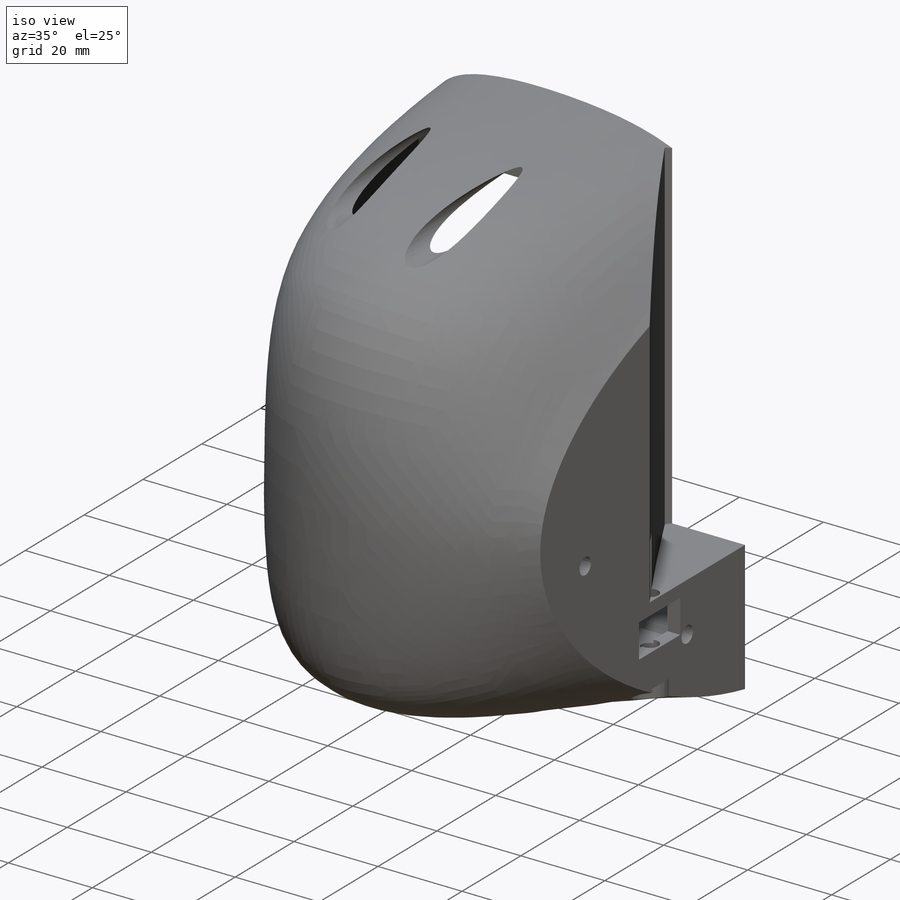
[diagram: iso view]
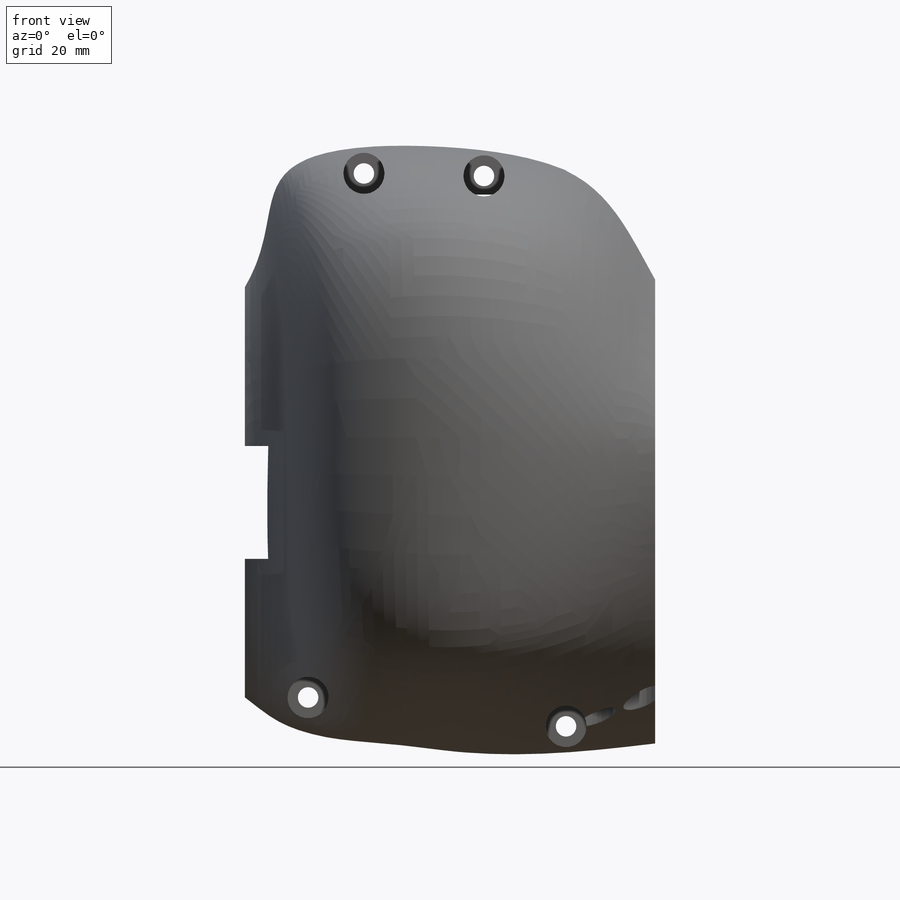
[diagram: front view]
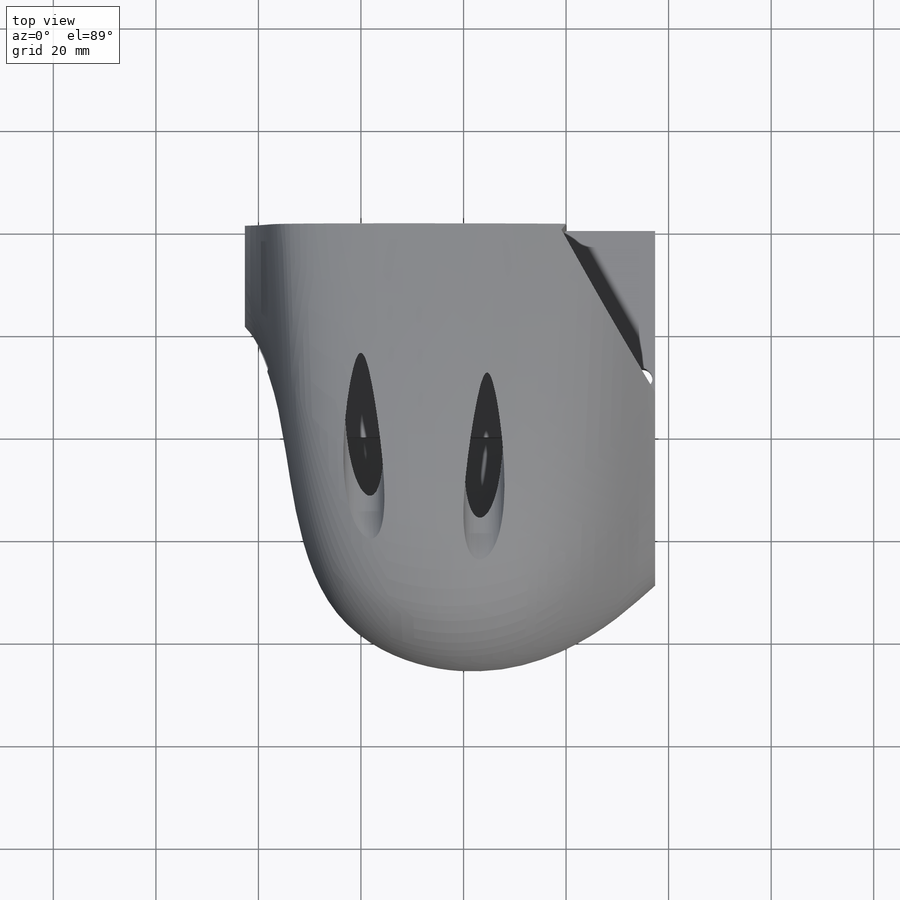
[diagram: top view]
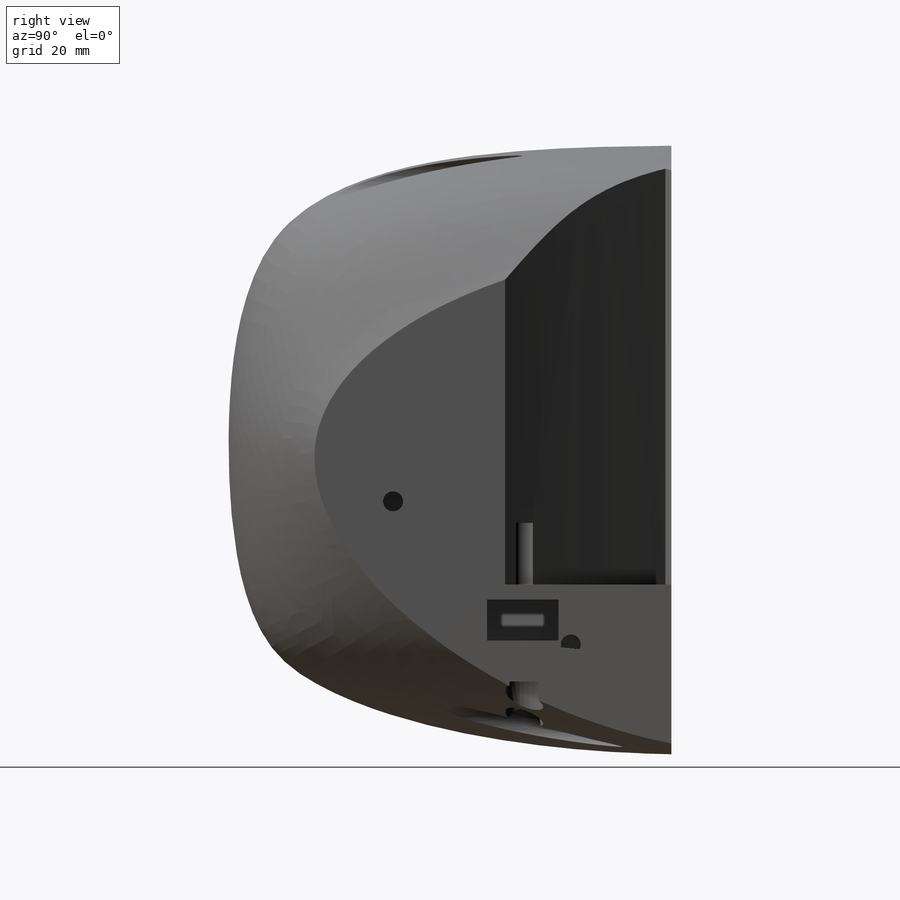
[diagram: right view]
SOLIDWORKS PART (.sldprt)
format: sldprt  version: not decoded by parser v0  size: 3,424,768 bytes
history: native  units: mm
features: sketch x14, cut_extrude x8, extrude x3, plane x3, material x1, move_body x1, shell x1, fillet x1 (+14 scaffold rows collapsed; 2 parser-record rows omitted)
feature tree (48):
  scaffold x14  (default folders/planes/origin — collapsed)
  material  "ABS"
  move_body  "Body-Move/Copy1"
  parser-record x2  (decoder bookkeeping rows leaked as tree rows — omitted from the tree; the rows remain in map.json)
  shell  "Shell1"  Thickness=3mm
  sketch  "Sketch12"
  extrude  "Extrude9"  Depth=18mm
  plane  "Plane4"  Offset=40mm
  sketch  "Sketch15"  dims[D1=0.0mm]
  sketch  "Sketch16"
  sketch  "Sketch18"
  sketch  "Sketch9"
  extrude  "Extrude7"  Depth=20mm
  sketch  "Sketch1"  dims[D1=74.0mm D2=32.5mm D3=24.0mm D4=20.8mm]
  cut_extrude  "Extrude1"  Depth=72mm
  sketch  "Sketch2"  dims[D1=41.0mm D2=91.0mm]
  cut_extrude  "Extrude2"  Depth=45mm
  plane  "Plane2"  Offset=90mm
  sketch  "Sketch3"  dims[D1=4.0mm]
  cut_extrude  "Extrude3"  [1 undecoded]
  sketch  "Sketch4"  dims[D1=8.0mm]
  cut_extrude  "Extrude4"  Depth=5mm
  plane  "Plane3"  Offset=48mm
  sketch  "Sketch6"  dims[D1=8.0mm D2=14.0mm]
  cut_extrude  "Cut-Extrude2"  Depth=20mm
  sketch  "Sketch5"  dims[D1=3.9mm]
  cut_extrude  "Extrude5"  Depth=60mm
  sketch  "Sketch7"  dims[D1=7.5mm]
  cut_extrude  "Extrude6"  Depth=8mm
  sketch  "Sketch19"
  extrude  "Extrude14"  Depth=10mm
  sketch  "Sketch8"  dims[D1=3.9mm]
  cut_extrude  "Cut-Extrude3"  Depth=14mm
  fillet  "Fillet1"  Radius=10mm
decode coverage: 21 of 28 modeling features carry decoded parameters
note: 1 parameter value undecoded
note: suppression state not decoded; provenance and decode notes live in map.json
